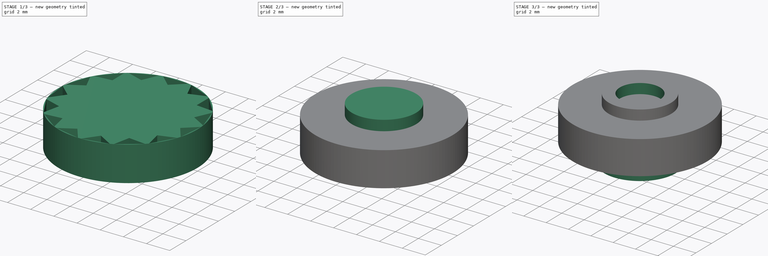
[diagram: build sequence overview — one tinted view per stage of 3, left to right]
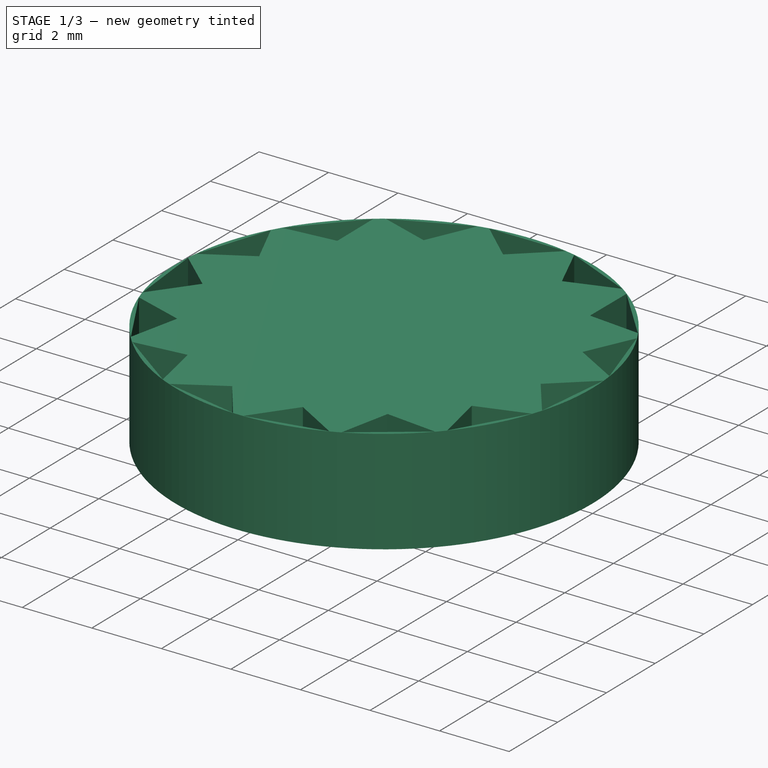
[diagram: stage 1 of 3 — iso view after this stage's code; geometry added in this stage tinted green]
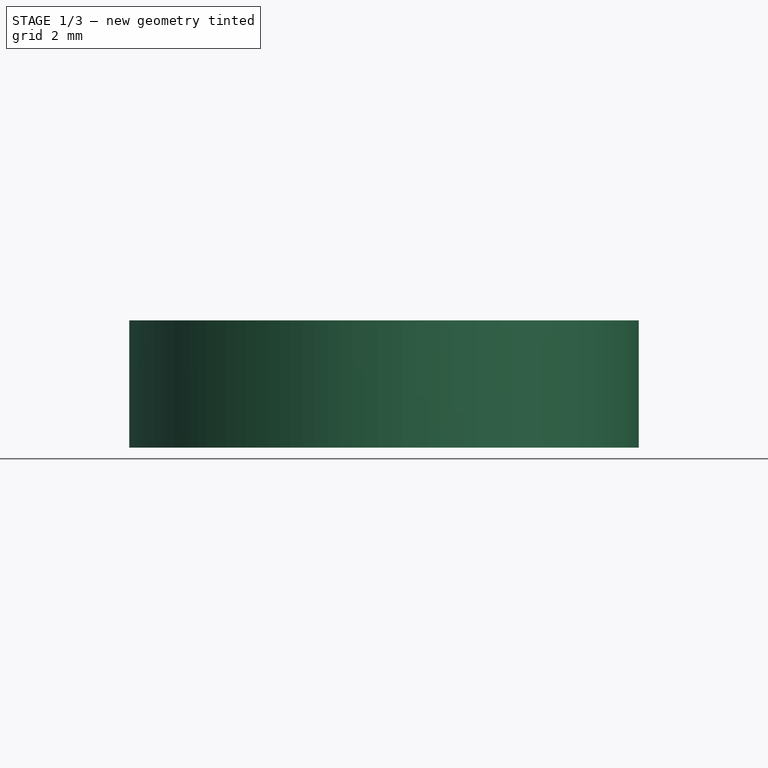
[diagram: stage 1 of 3 — front view after this stage's code; geometry added in this stage tinted green]
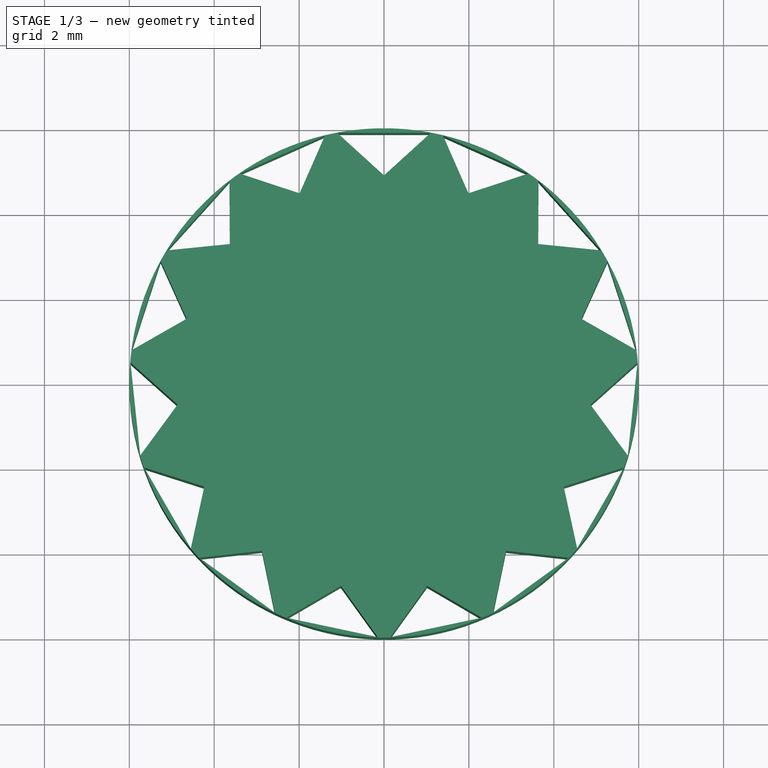
[diagram: stage 1 of 3 — top view after this stage's code; geometry added in this stage tinted green]
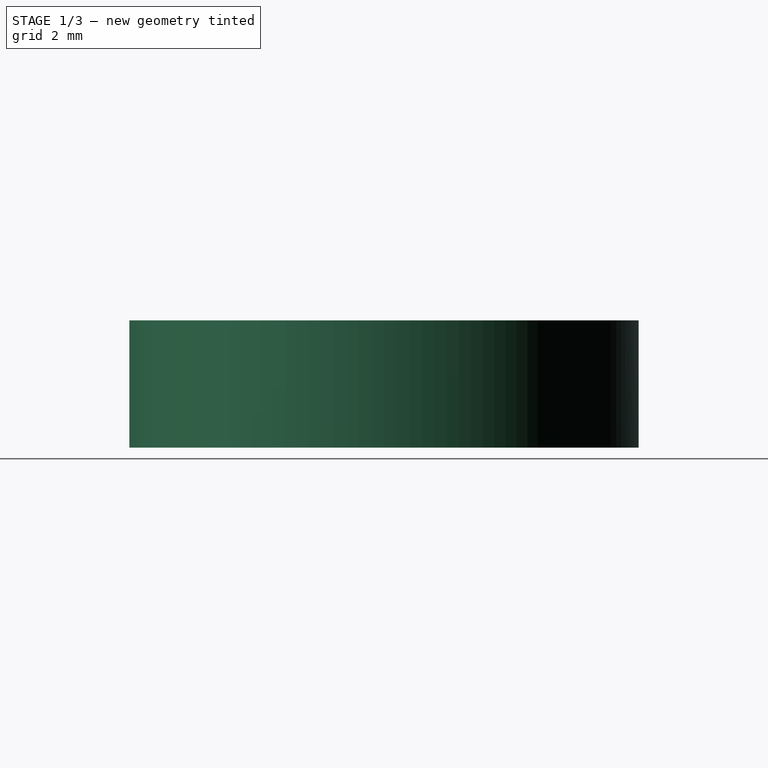
[diagram: stage 1 of 3 — right view after this stage's code; geometry added in this stage tinted green]
FCSTD DOCUMENT  (FreeCAD 0.16R6705 (Git))
Label: pignoncino3
License: CC-BY 3.0
LicenseURL: http://creativecommons.org/licenses/by/3.0/
objects: Sketcher::SketchObject×8, PartDesign::Pocket×4, PartDesign::Pad×3, PartDesign::PolarPattern×1
note: 23 computed .brp shape members not serialized (recipe doc carries the construction recipe); baked Part::Feature solids carry a one-line shape summary decoded from their .brp

FEATURE [Sketcher::SketchObject] Sketch  label="main-body-sketch"
  sketch-geometry (1):
    g0: Circle CenterX=0 CenterY=0 CenterZ=0 NormalX=0 NormalY=0 NormalZ=1 Radius=6
  constraints (2):
    c: Coincident(g0,g-1)
    c: Radius(g0) = 6
FEATURE [PartDesign::Pad] Pad  label="main-body"
  Length = 3
  Length2 = 100
  Sketch = -> Sketch
  Type = 0
FEATURE [Sketcher::SketchObject] Sketch006  label="shaft-drill-sketch"
  Placement = pos=(0,0,1.3) rot=(0,0,1;0rad)
  sketch-geometry (1):
    g0: Circle CenterX=0 CenterY=0 CenterZ=0 NormalX=0 NormalY=0 NormalZ=1 Radius=0.85
  constraints (2):
    c: Coincident(g0,g-1)
    c: Radius(g0) = 0.85
FEATURE [Sketcher::SketchObject] Sketch007  label="dente"
  Placement = pos=(0,0,3) rot=(0,0,1;0rad)
  Support = -> Pad [Face3]
  sketch-geometry (3):
    g0: LineSegment StartX=-1.1 StartY=5.88953 StartZ=0 EndX=0 EndY=4.88953 EndZ=0
    g1: LineSegment StartX=0 StartY=4.88953 StartZ=0 EndX=1.1 EndY=5.88953 EndZ=0
    g2: LineSegment StartX=1.1 StartY=5.88953 StartZ=0 EndX=-1.1 EndY=5.88953 EndZ=0
  constraints (7):
    c: Coincident(g0,g1)
    c: Coincident(g1,g2)
    c: Coincident(g2,g0)
    c: PointOnObject(g0,g-2)
    c: Symmetric(g0,g1,g-2)
    c: DistanceY(g0,g1) = 1
    c: DistanceX(g0,g1) = 2.2
FEATURE [PartDesign::Pocket] Pocket003
  Length = 5
  Sketch = -> Sketch007
  Type = 1
FEATURE [PartDesign::PolarPattern] PolarPattern
  Angle = 360
  Axis = -> Sketch007 [N_Axis]
  Occurrences = 15
  Originals = -> [Pocket003]
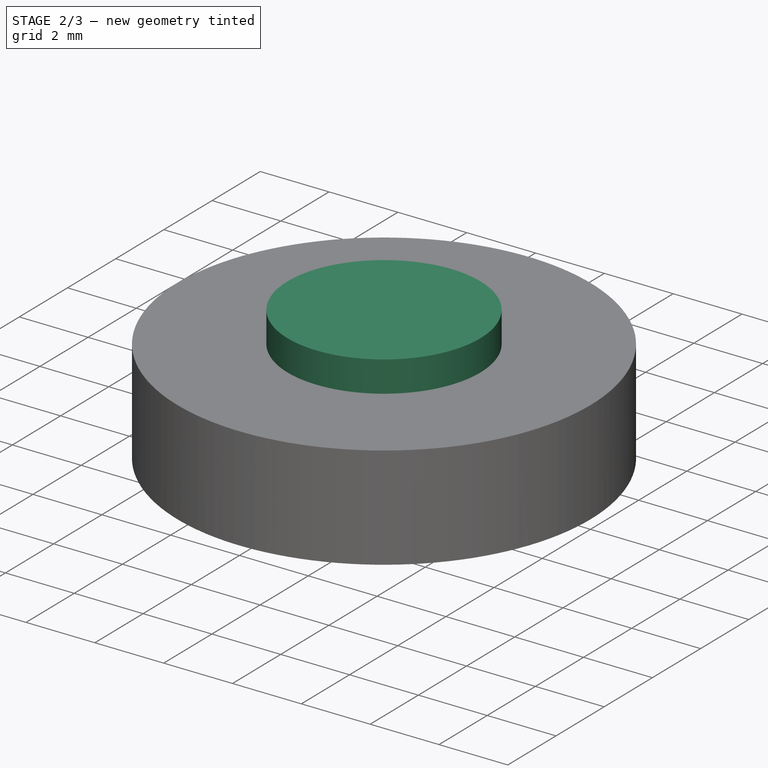
[diagram: stage 2 of 3 — iso view after this stage's code; geometry added in this stage tinted green]
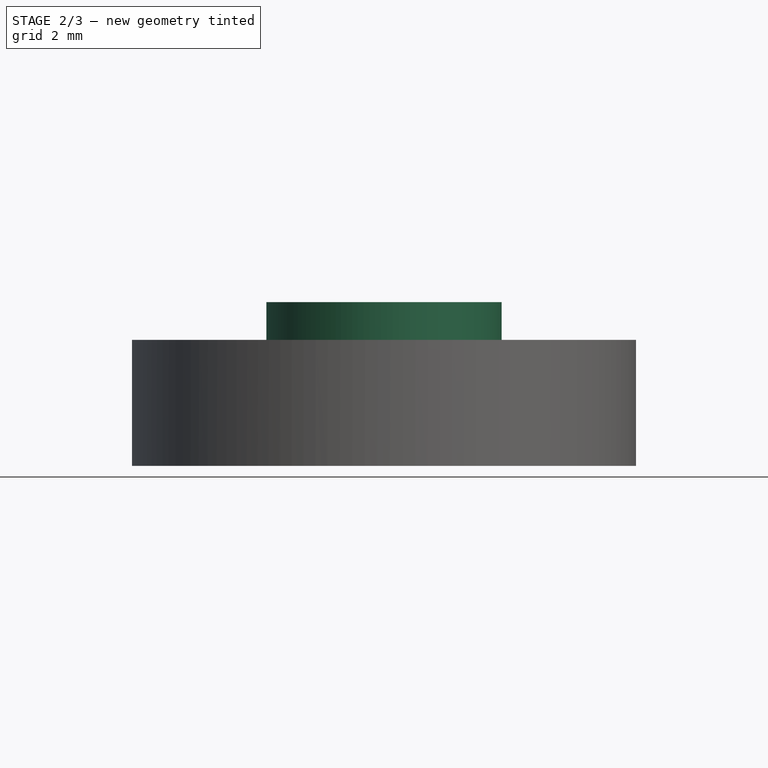
[diagram: stage 2 of 3 — front view after this stage's code; geometry added in this stage tinted green]
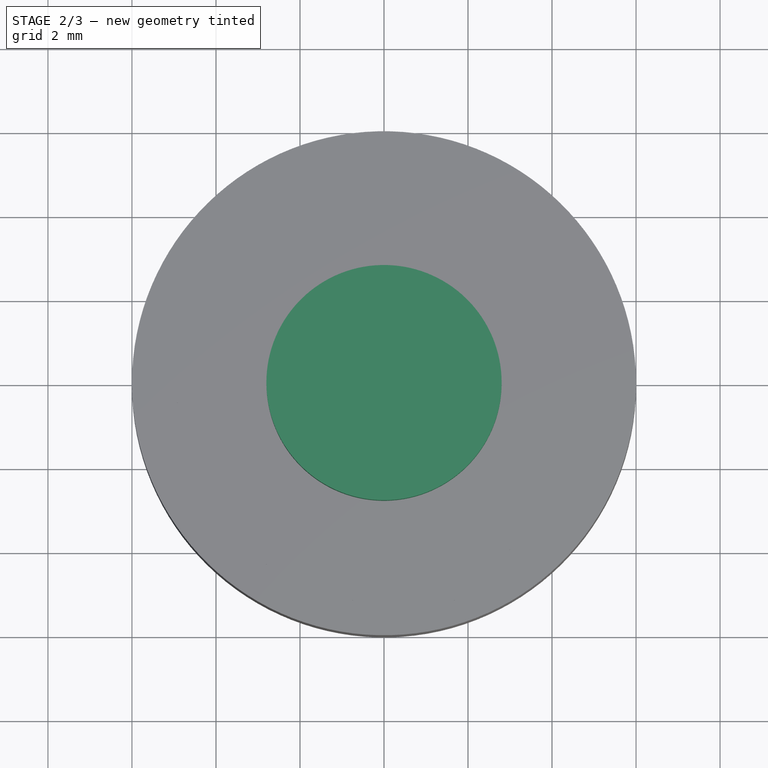
[diagram: stage 2 of 3 — top view after this stage's code; geometry added in this stage tinted green]
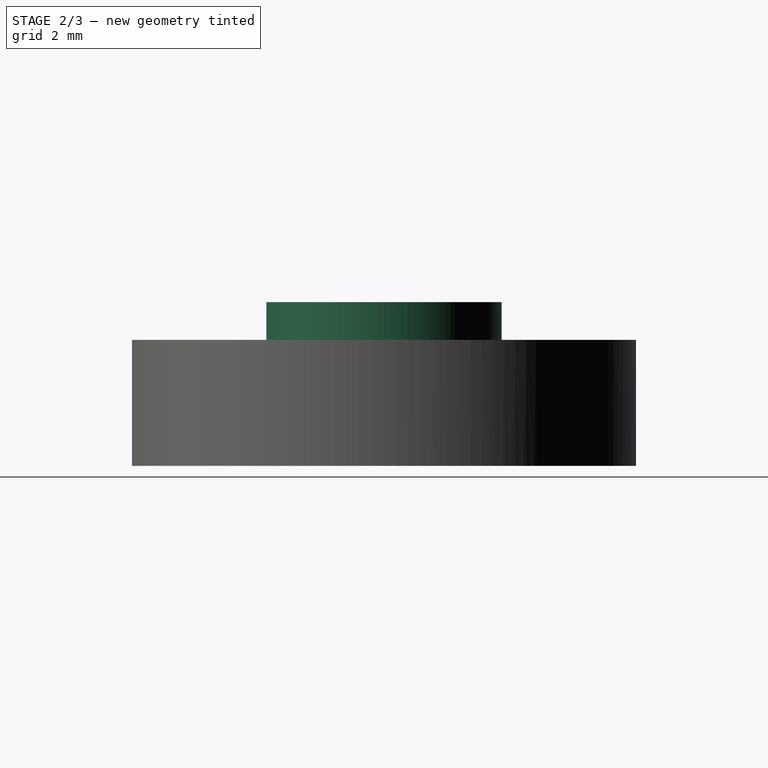
[diagram: stage 2 of 3 — right view after this stage's code; geometry added in this stage tinted green]
FEATURE [Sketcher::SketchObject] Sketch001  label="top-pad-1-sketch"
  Placement = pos=(0,0,3) rot=(0,0,1;0rad)
  Support = -> Pad [Face3]
  sketch-geometry (1):
    g0: Circle CenterX=0 CenterY=0 CenterZ=0 NormalX=0 NormalY=0 NormalZ=1 Radius=2.8
  constraints (2):
    c: Coincident(g0,g-1)
    c: Radius(g0) = 2.8
FEATURE [PartDesign::Pad] Pad001  label="top-pad-1"
  Length = 0.9
  Length2 = 100
  Sketch = -> Sketch001
  Type = 0
FEATURE [Sketcher::SketchObject] Sketch008  label="shaft-drill-sketch001"
  Placement = pos=(5.66221,1.83977,0) rot=(0.697457,-0.506732,-0.506732;1.92356rad)
  Support = -> PolarPattern [Face55]
  sketch-geometry (1):
    g0: Circle CenterX=0 CenterY=0 CenterZ=0 NormalX=0 NormalY=0 NormalZ=1 Radius=0.85
  constraints (2):
    c: Coincident(g0,g-1)
    c: Radius(g0) = 0.85
FEATURE [PartDesign::Pocket] Pocket004
  Length = 5
  Sketch = -> Sketch008
  Type = 1
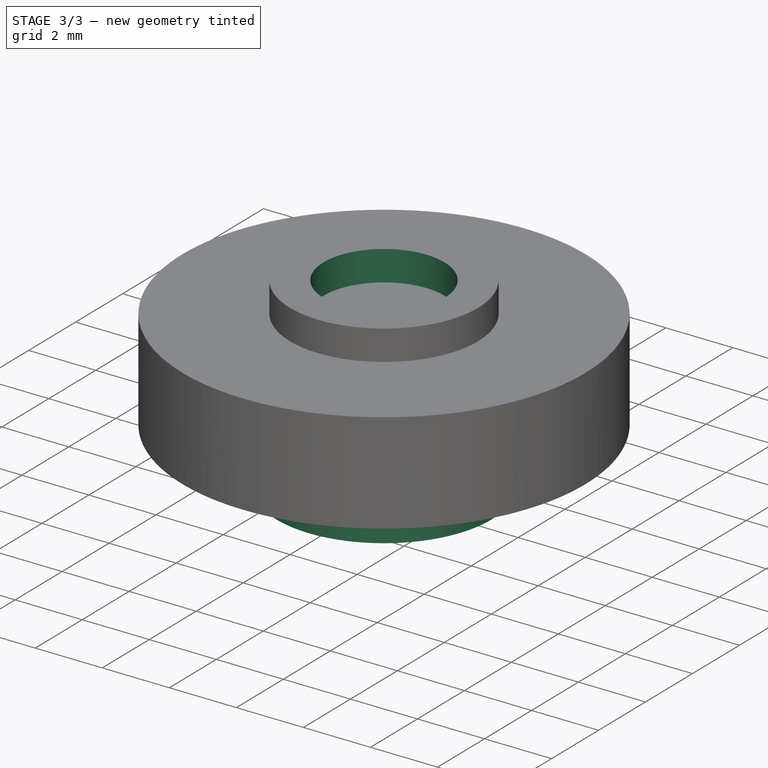
[diagram: stage 3 of 3 — iso view after this stage's code; geometry added in this stage tinted green]
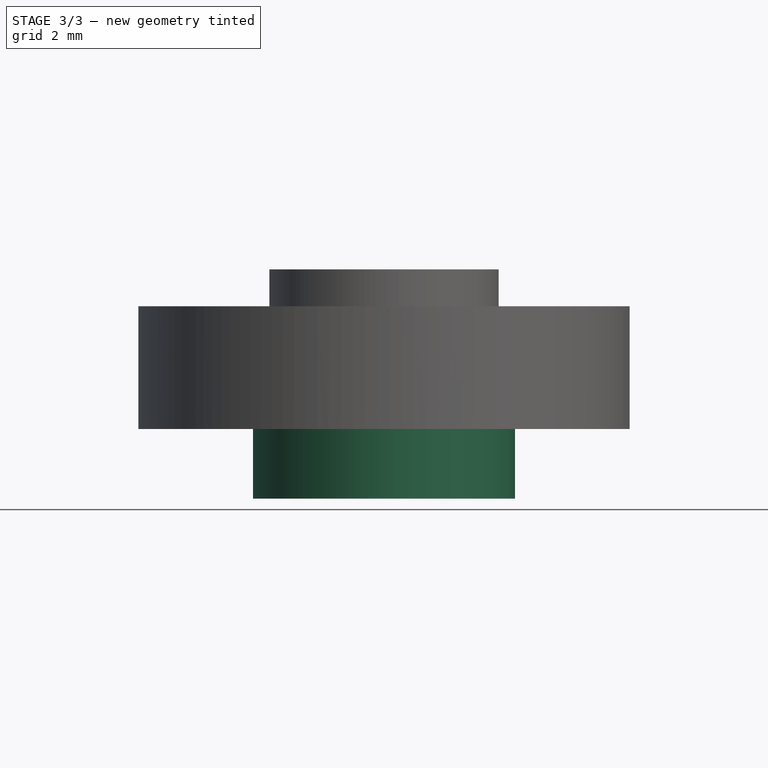
[diagram: stage 3 of 3 — front view after this stage's code; geometry added in this stage tinted green]
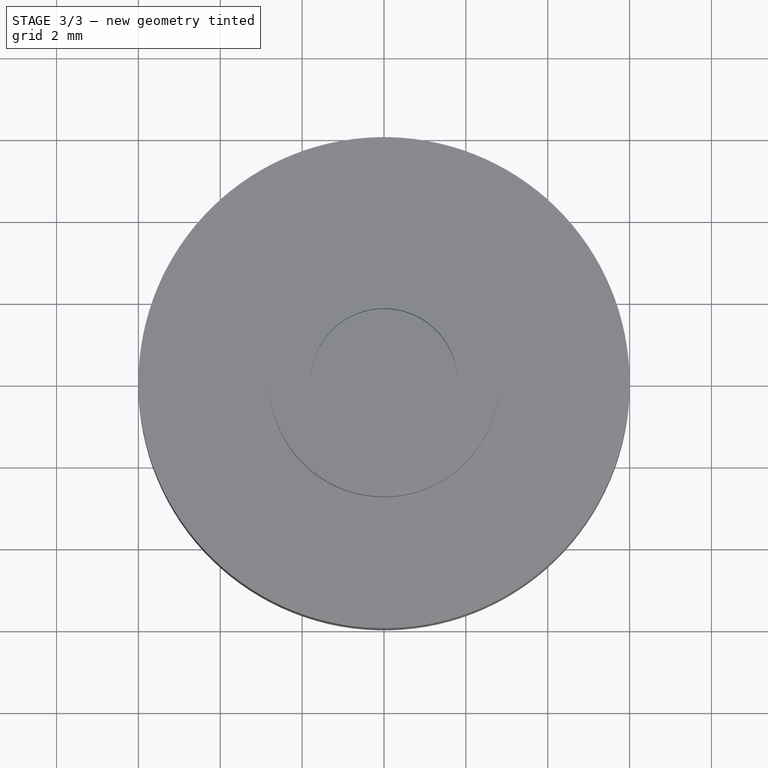
[diagram: stage 3 of 3 — top view after this stage's code; geometry added in this stage tinted green]
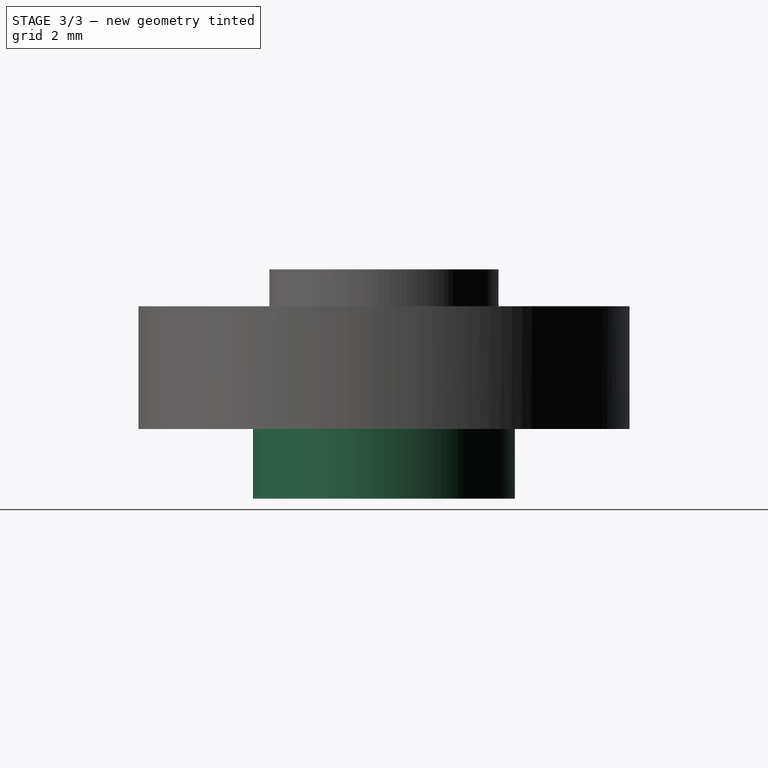
[diagram: stage 3 of 3 — right view after this stage's code; geometry added in this stage tinted green]
FEATURE [Sketcher::SketchObject] Sketch002  label="top-cutout-2-sketch"
  Placement = pos=(0,0,3.9) rot=(0,0,1;0rad)
  Support = -> Pad001 [Face5]
  sketch-geometry (1):
    g0: Circle CenterX=0 CenterY=0 CenterZ=0 NormalX=0 NormalY=0 NormalZ=1 Radius=1.8
  constraints (2):
    c: Coincident(g0,g-1)
    c: Radius(g0) = 1.8
FEATURE [PartDesign::Pocket] Pocket  label="top-cutout-2"
  Length = 1.1
  Sketch = -> Sketch002
  Type = 0
FEATURE [Sketcher::SketchObject] Sketch003  label="bottom-pad-3-sketch"
  Placement = pos=(0,0,0) rot=(1,0,0;3.14159rad)
  Support = -> Pocket [Face2]
  sketch-geometry (1):
    g0: Circle CenterX=0 CenterY=0 CenterZ=0 NormalX=0 NormalY=0 NormalZ=1 Radius=3.2
  constraints (2):
    c: Coincident(g0,g-1)
    c: Radius(g0) = 3.2
FEATURE [PartDesign::Pad] Pad002  label="bottom-pad-3"
  Length = 1.7
  Length2 = 100
  Sketch = -> Sketch003
  Type = 0
FEATURE [Sketcher::SketchObject] Sketch004  label="bottom-pad-4-sketch"
  Placement = pos=(0,0,-1.7) rot=(1,0,0;3.14159rad)
  Support = -> Pad002 [Face6]
  sketch-geometry (1):
    g0: Circle CenterX=0 CenterY=0 CenterZ=0 NormalX=0 NormalY=0 NormalZ=1 Radius=2.3
  constraints (2):
    c: Coincident(g0,g-1)
    c: Radius(g0) = 2.3
FEATURE [PartDesign::Pocket] Pocket001  label="bottom-pad-4"
  Length = 2.6
  Sketch = -> Sketch004
  Type = 0
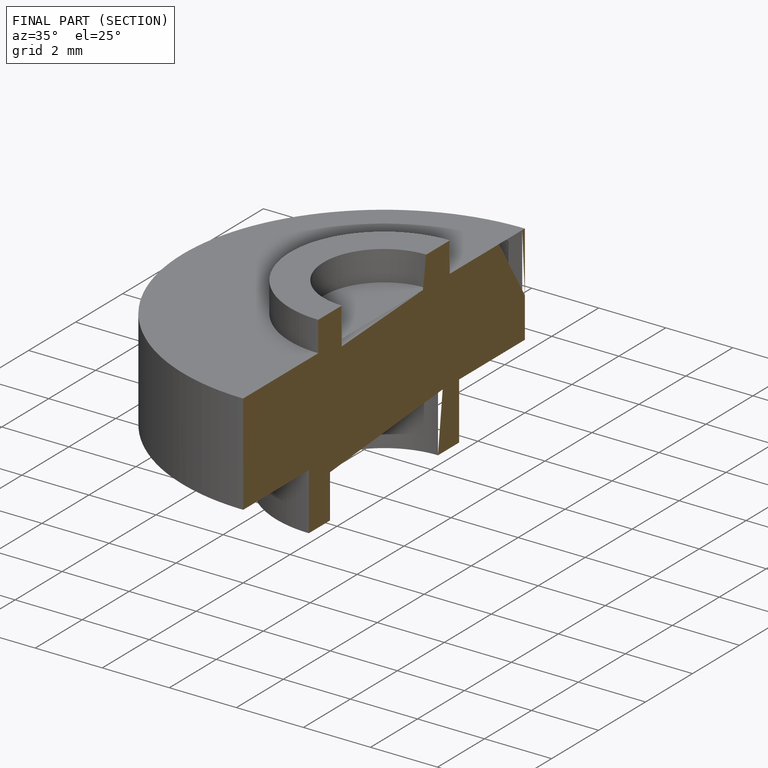
[diagram: finished part — half-section view (interior)]
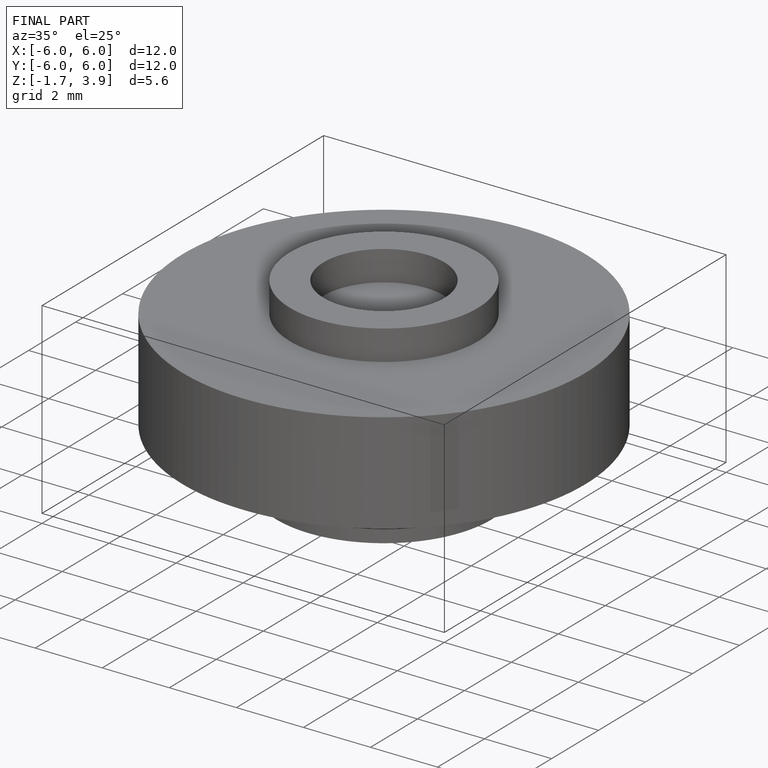
[diagram: finished part — iso view with bounding-box wireframe]
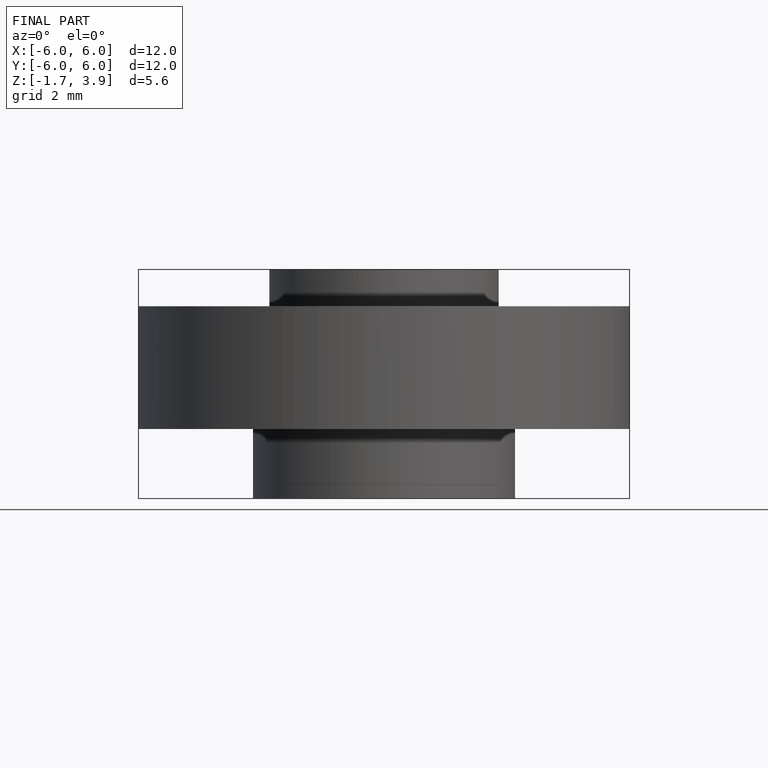
[diagram: finished part — front view with bounding-box wireframe]
